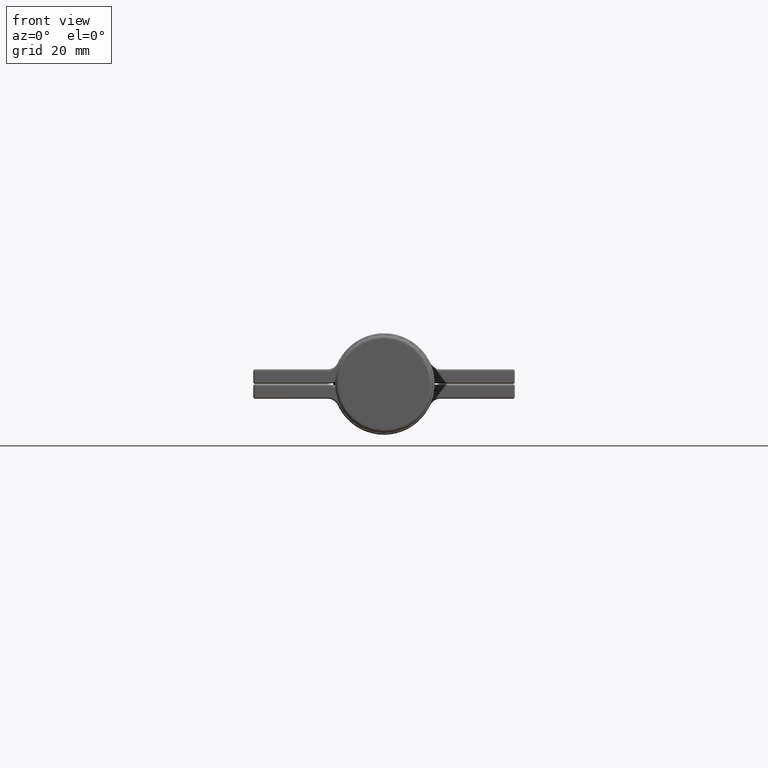
[diagram: clean part render]
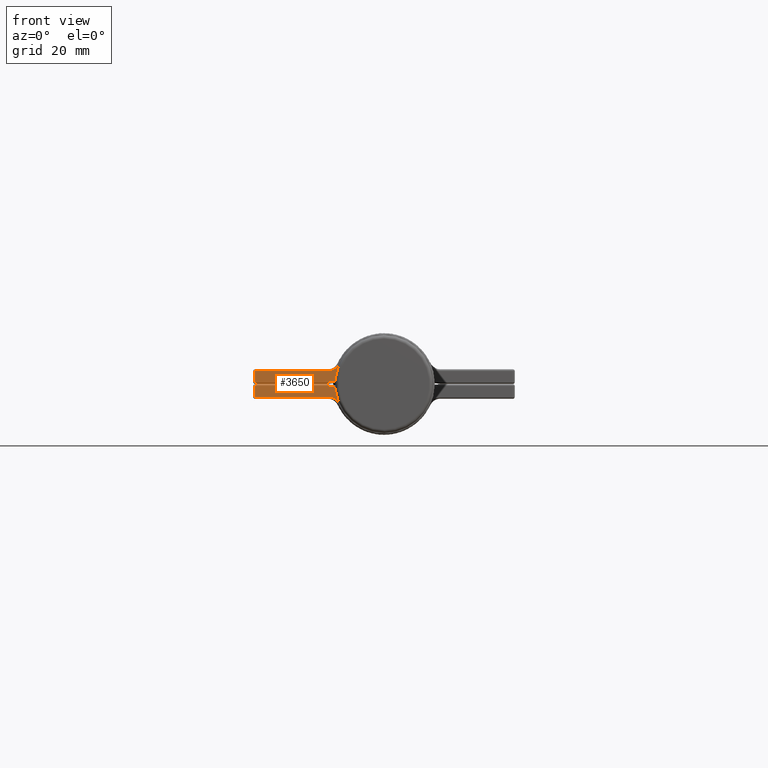
[diagram: same view with one face highlighted and labeled with its STEP entity id]
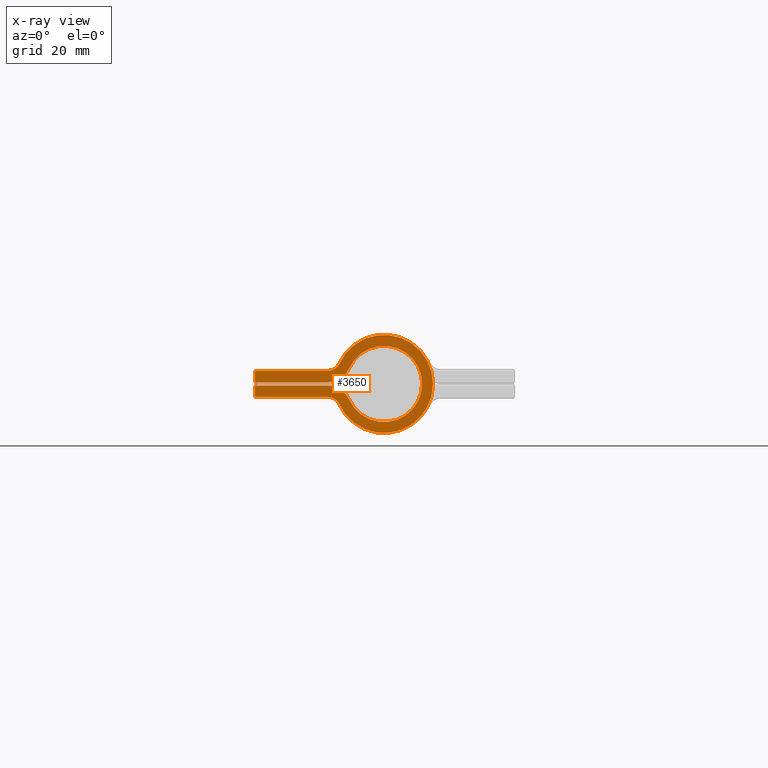
[diagram: x-ray of the same camera — body ghosted, the highlighted face saturated]
A machine part, front view. The second image highlights one B-rep face of the part: STEP entity #3650.
The next image is the same camera in x-ray: the body ghosted, the highlighted face saturated — about 0% of this face is hidden behind the body in this view.
In plain terms, the highlighted planar face has unit normal (0, 1, 0).
Its self-contained STEP definition (entity closure, byte-faithful):
#201 = VERTEX_POINT ( 'NONE', #9343 ) ;
#231 = EDGE_CURVE ( 'NONE', #10205, #9961, #3333, .T. ) ;
#298 = CARTESIAN_POINT ( 'NONE',  ( 7.049999999999998934, -20.00000000000000000, 15.46924367899090313 ) ) ;
#367 = DIRECTION ( 'NONE',  ( 0.000000000000000000, 0.000000000000000000, 1.000000000000000000 ) ) ;
#447 = LINE ( 'NONE', #3470, #4247 ) ;
#504 = AXIS2_PLACEMENT_3D ( 'NONE', #10517, #7967, #3820 ) ;
#641 = DIRECTION ( 'NONE',  ( -2.389592840024402944E-16, 0.000000000000000000, -1.000000000000000000 ) ) ;
#642 = CIRCLE ( 'NONE', #2577, 13.49999999999999822 ) ;
#704 = CARTESIAN_POINT ( 'NONE',  ( -3.549999999999998934, -20.00000000000000000, 35.50000000000000000 ) ) ;
#710 = EDGE_CURVE ( 'NONE', #1925, #8702, #447, .T. ) ;
#984 = DIRECTION ( 'NONE',  ( 0.000000000000000000, 0.000000000000000000, 1.000000000000000000 ) ) ;
#998 = VERTEX_POINT ( 'NONE', #8785 ) ;
#1024 = EDGE_LOOP ( 'NONE', ( #9279, #7138, #7873, #6465, #4701, #9147, #1274, #3000, #5881, #10341, #5739, #3705 ) ) ;
#1116 = EDGE_CURVE ( 'NONE', #201, #10205, #7657, .T. ) ;
#1274 = ORIENTED_EDGE ( 'NONE', *, *, #6548, .T. ) ;
#1327 = FACE_OUTER_BOUND ( 'NONE', #1024, .T. ) ;
#1467 = VERTEX_POINT ( 'NONE', #7692 ) ;
#1556 = CARTESIAN_POINT ( 'NONE',  ( 0.000000000000000000, -20.00000000000000000, 0.000000000000000000 ) ) ;
#1669 = DIRECTION ( 'NONE',  ( -1.689877809520019415E-16, -0.000000000000000000, -1.000000000000000000 ) ) ;
#1683 = CARTESIAN_POINT ( 'NONE',  ( 0.5499999999999992673, -20.00000000000000000, 15.46924367899090491 ) ) ;
#1839 = AXIS2_PLACEMENT_3D ( 'NONE', #298, #10273, #7012 ) ;
#1925 = VERTEX_POINT ( 'NONE', #6024 ) ;
#2344 = DIRECTION ( 'NONE',  ( -0.000000000000000000, 0.000000000000000000, 1.000000000000000000 ) ) ;
#2577 = AXIS2_PLACEMENT_3D ( 'NONE', #8688, #8660, #367 ) ;
#2700 = CARTESIAN_POINT ( 'NONE',  ( -5.598529411764705976, -20.00000000000000000, 12.28439939213983401 ) ) ;
#2808 = DIRECTION ( 'NONE',  ( 0.000000000000000000, 0.000000000000000000, 1.000000000000000000 ) ) ;
#2814 = AXIS2_PLACEMENT_3D ( 'NONE', #6823, #5271, #2808 ) ;
#3000 = ORIENTED_EDGE ( 'NONE', *, *, #8391, .T. ) ;
#3170 = CARTESIAN_POINT ( 'NONE',  ( -3.550000000000002487, -20.00000000000000000, 15.46924367899090313 ) ) ;
#3333 = CIRCLE ( 'NONE', #1839, 6.500000000000000888 ) ;
#3433 = DIRECTION ( 'NONE',  ( 0.000000000000000000, 0.000000000000000000, 1.000000000000000000 ) ) ;
#3470 = CARTESIAN_POINT ( 'NONE',  ( 3.550000000000003819, -20.00000000000000000, 36.00000000000000000 ) ) ;
#3650 = ADVANCED_FACE ( 'NONE', ( #1327 ), #10125, .F. ) ;
#3705 = ORIENTED_EDGE ( 'NONE', *, *, #231, .T. ) ;
#3820 = DIRECTION ( 'NONE',  ( 0.000000000000000000, 0.000000000000000000, 1.000000000000000000 ) ) ;
#3852 = VERTEX_POINT ( 'NONE', #704 ) ;
#3903 = CIRCLE ( 'NONE', #8736, 10.49999999999999822 ) ;
#4012 = CARTESIAN_POINT ( 'NONE',  ( -7.050000000000001599, -20.00000000000000000, 15.46924367899090313 ) ) ;
#4247 = VECTOR ( 'NONE', #5941, 1000.000000000000000 ) ;
#4320 = AXIS2_PLACEMENT_3D ( 'NONE', #1556, #5971, #984 ) ;
#4531 = AXIS2_PLACEMENT_3D ( 'NONE', #4012, #9007, #6536 ) ;
#4701 = ORIENTED_EDGE ( 'NONE', *, *, #8273, .T. ) ;
#4797 = CARTESIAN_POINT ( 'NONE',  ( -0.5499999999999988232, -20.00000000000000000, 35.50000000000000000 ) ) ;
#4942 = LINE ( 'NONE', #6135, #7755 ) ;
#5121 = DIRECTION ( 'NONE',  ( 0.000000000000000000, 1.000000000000000000, -0.000000000000000000 ) ) ;
#5123 = VECTOR ( 'NONE', #641, 1000.000000000000000 ) ;
#5206 = EDGE_CURVE ( 'NONE', #10804, #3852, #4942, .T. ) ;
#5271 = DIRECTION ( 'NONE',  ( 0.000000000000000000, 1.000000000000000000, -0.000000000000000000 ) ) ;
#5406 = EDGE_CURVE ( 'NONE', #8702, #201, #10176, .T. ) ;
#5437 = VERTEX_POINT ( 'NONE', #9754 ) ;
#5544 = DIRECTION ( 'NONE',  ( -1.000000000000000000, 0.000000000000000000, 0.000000000000000000 ) ) ;
#5567 = CIRCLE ( 'NONE', #504, 6.499999999999999112 ) ;
#5739 = ORIENTED_EDGE ( 'NONE', *, *, #1116, .T. ) ;
#5881 = ORIENTED_EDGE ( 'NONE', *, *, #710, .T. ) ;
#5941 = DIRECTION ( 'NONE',  ( 8.449389047600097077E-17, 0.000000000000000000, 1.000000000000000000 ) ) ;
#5962 = EDGE_CURVE ( 'NONE', #9436, #9245, #9769, .T. ) ;
#5967 = LINE ( 'NONE', #10583, #8970 ) ;
#5971 = DIRECTION ( 'NONE',  ( 0.000000000000000000, 1.000000000000000000, -0.000000000000000000 ) ) ;
#6024 = CARTESIAN_POINT ( 'NONE',  ( 3.550000000000001599, -20.00000000000000000, 15.46924367899090136 ) ) ;
#6135 = CARTESIAN_POINT ( 'NONE',  ( 0.000000000000000000, -20.00000000000000000, 35.50000000000000000 ) ) ;
#6259 = CARTESIAN_POINT ( 'NONE',  ( 3.550000000000003819, -20.00000000000000000, 35.50000000000000000 ) ) ;
#6419 = CARTESIAN_POINT ( 'NONE',  ( 0.05000000000000422162, -20.00000000000000000, 35.50000000000000000 ) ) ;
#6465 = ORIENTED_EDGE ( 'NONE', *, *, #5206, .T. ) ;
#6536 = DIRECTION ( 'NONE',  ( 0.000000000000000000, 0.000000000000000000, 1.000000000000000000 ) ) ;
#6548 = EDGE_CURVE ( 'NONE', #9245, #1467, #642, .T. ) ;
#6640 = CARTESIAN_POINT ( 'NONE',  ( -3.550000000000005151, -20.00000000000000000, 5.999066223796077331E-16 ) ) ;
#6823 = CARTESIAN_POINT ( 'NONE',  ( 7.050000000000001599, -20.00000000000000000, 15.46924367899090136 ) ) ;
#6828 = EDGE_CURVE ( 'NONE', #9961, #5437, #3903, .T. ) ;
#6890 = CIRCLE ( 'NONE', #2814, 3.500000000000001332 ) ;
#6934 = VECTOR ( 'NONE', #5544, 1000.000000000000000 ) ;
#7012 = DIRECTION ( 'NONE',  ( 0.000000000000000000, 0.000000000000000000, 1.000000000000000000 ) ) ;
#7138 = ORIENTED_EDGE ( 'NONE', *, *, #8694, .T. ) ;
#7340 = CARTESIAN_POINT ( 'NONE',  ( 0.5499999999999992673, -20.00000000000000000, 15.46924367899090491 ) ) ;
#7657 = LINE ( 'NONE', #7340, #5123 ) ;
#7692 = CARTESIAN_POINT ( 'NONE',  ( 5.598529411764706865, -20.00000000000000000, 12.28439939213983223 ) ) ;
#7755 = VECTOR ( 'NONE', #9456, 1000.000000000000000 ) ;
#7873 = ORIENTED_EDGE ( 'NONE', *, *, #8078, .T. ) ;
#7967 = DIRECTION ( 'NONE',  ( -0.000000000000000000, -1.000000000000000000, 0.000000000000000000 ) ) ;
#8078 = EDGE_CURVE ( 'NONE', #998, #10804, #5967, .T. ) ;
#8273 = EDGE_CURVE ( 'NONE', #3852, #9436, #8590, .T. ) ;
#8391 = EDGE_CURVE ( 'NONE', #1467, #1925, #6890, .T. ) ;
#8590 = LINE ( 'NONE', #6640, #9606 ) ;
#8660 = DIRECTION ( 'NONE',  ( -0.000000000000000000, -1.000000000000000000, 0.000000000000000000 ) ) ;
#8688 = CARTESIAN_POINT ( 'NONE',  ( 0.000000000000000000, -20.00000000000000000, 0.000000000000000000 ) ) ;
#8694 = EDGE_CURVE ( 'NONE', #5437, #998, #5567, .T. ) ;
#8702 = VERTEX_POINT ( 'NONE', #6259 ) ;
#8736 = AXIS2_PLACEMENT_3D ( 'NONE', #9258, #5121, #3433 ) ;
#8785 = CARTESIAN_POINT ( 'NONE',  ( -0.5499999999999988232, -20.00000000000000000, 15.46924367899090491 ) ) ;
#8970 = VECTOR ( 'NONE', #2344, 1000.000000000000000 ) ;
#9007 = DIRECTION ( 'NONE',  ( 0.000000000000000000, 1.000000000000000000, -0.000000000000000000 ) ) ;
#9147 = ORIENTED_EDGE ( 'NONE', *, *, #5962, .T. ) ;
#9245 = VERTEX_POINT ( 'NONE', #2700 ) ;
#9258 = CARTESIAN_POINT ( 'NONE',  ( 0.000000000000000000, -20.00000000000000000, 0.000000000000000000 ) ) ;
#9279 = ORIENTED_EDGE ( 'NONE', *, *, #6828, .T. ) ;
#9343 = CARTESIAN_POINT ( 'NONE',  ( 0.5500000000000040412, -20.00000000000000000, 35.50000000000000000 ) ) ;
#9436 = VERTEX_POINT ( 'NONE', #3170 ) ;
#9456 = DIRECTION ( 'NONE',  ( -1.000000000000000000, -0.000000000000000000, -0.000000000000000000 ) ) ;
#9606 = VECTOR ( 'NONE', #1669, 1000.000000000000000 ) ;
#9754 = CARTESIAN_POINT ( 'NONE',  ( -4.354411764705881538, -20.00000000000000000, 9.554532860553202056 ) ) ;
#9769 = CIRCLE ( 'NONE', #4531, 3.499999999999999556 ) ;
#9820 = CARTESIAN_POINT ( 'NONE',  ( 4.354411764705880650, -20.00000000000000000, 9.554532860553205609 ) ) ;
#9961 = VERTEX_POINT ( 'NONE', #9820 ) ;
#10125 = PLANE ( 'NONE',  #4320 ) ;
#10176 = LINE ( 'NONE', #6419, #6934 ) ;
#10205 = VERTEX_POINT ( 'NONE', #1683 ) ;
#10273 = DIRECTION ( 'NONE',  ( -0.000000000000000000, -1.000000000000000000, 0.000000000000000000 ) ) ;
#10341 = ORIENTED_EDGE ( 'NONE', *, *, #5406, .T. ) ;
#10517 = CARTESIAN_POINT ( 'NONE',  ( -7.049999999999998934, -20.00000000000000000, 15.46924367899090491 ) ) ;
#10583 = CARTESIAN_POINT ( 'NONE',  ( -0.5499999999999988232, -20.00000000000000000, -0.000000000000000000 ) ) ;
#10804 = VERTEX_POINT ( 'NONE', #4797 ) ;